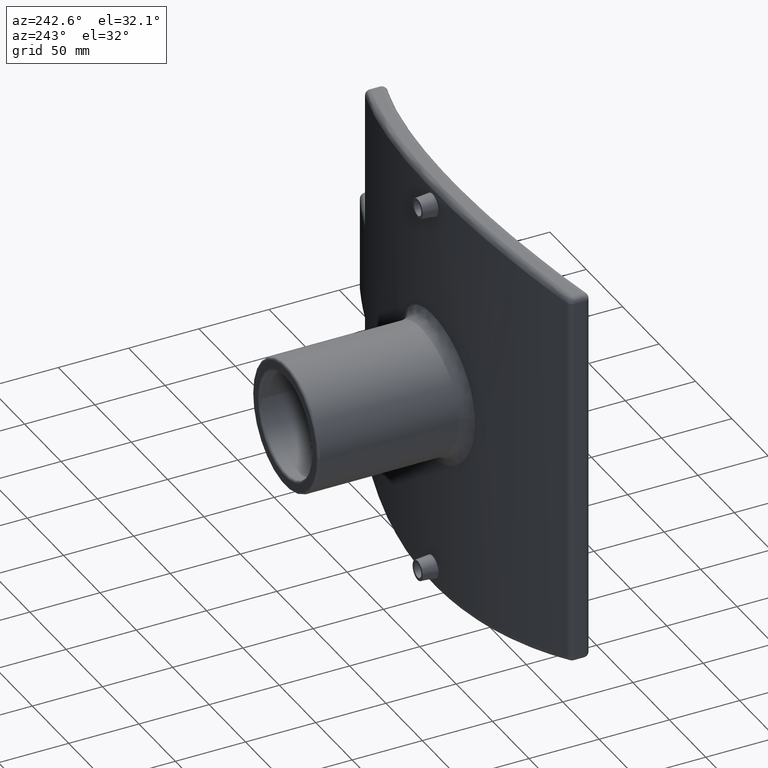
[diagram: clean part render]
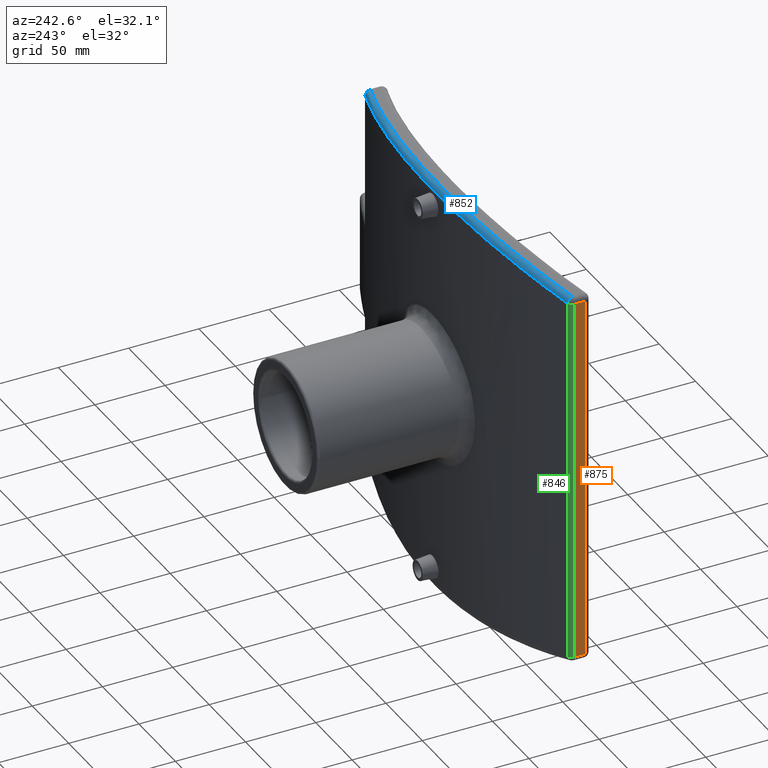
[diagram: same view with three faces highlighted in distinct colors, each labeled with its STEP entity id]
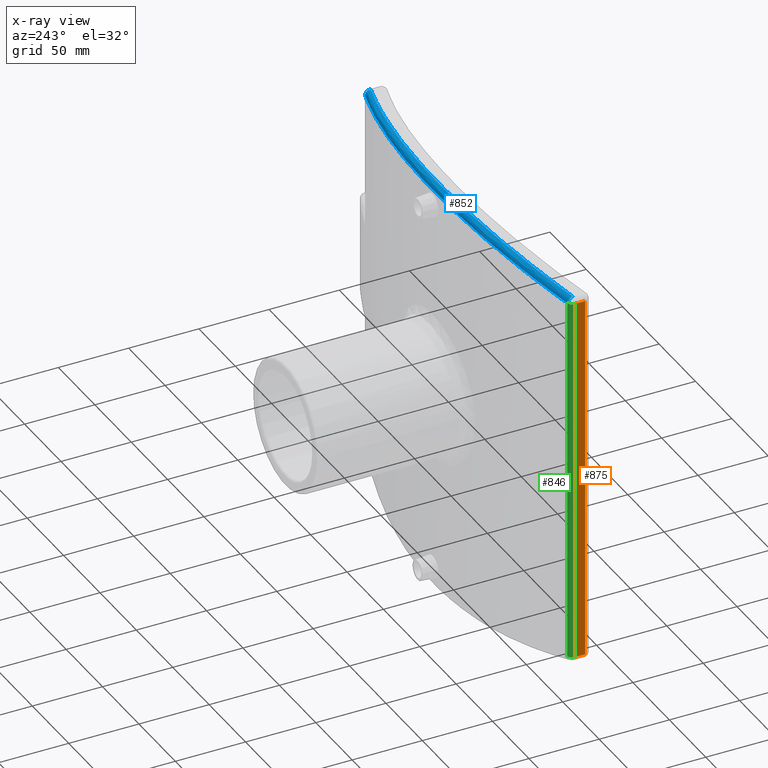
[diagram: x-ray of the same camera — body ghosted, the three highlighted faces saturated]
A machine part, auxiliary view with three faces highlighted in distinct colors.
The next image is the same camera in x-ray (body ghosted, the three faces saturated) — at least one of them is partly hidden behind the body in this view.
Their STEP definitions:

[orange] entity #875 — the highlighted planar face has unit normal (-1, 0, 0).
#34=LINE('',#1884,#64);
#45=LINE('',#2090,#75);
#47=LINE('',#2093,#77);
#51=LINE('',#2125,#81);
#64=VECTOR('',#1147,263.515226148028);
#75=VECTOR('',#1228,7.43788437451485);
#77=VECTOR('',#1232,263.515226148028);
#81=VECTOR('',#1250,7.43788437451485);
#152=PLANE('',#1001);
#238=FACE_OUTER_BOUND('',#325,.T.);
#325=EDGE_LOOP('',(#777,#778,#779,#780));
#434=VERTEX_POINT('',#1799);
#440=VERTEX_POINT('',#1874);
#442=VERTEX_POINT('',#1880);
#449=VERTEX_POINT('',#1902);
#521=EDGE_CURVE('',#434,#442,#34,.T.);
#558=EDGE_CURVE('',#442,#449,#45,.T.);
#560=EDGE_CURVE('',#449,#440,#47,.T.);
#569=EDGE_CURVE('',#440,#434,#51,.T.);
#777=ORIENTED_EDGE('',*,*,#521,.F.);
#778=ORIENTED_EDGE('',*,*,#569,.F.);
#779=ORIENTED_EDGE('',*,*,#560,.F.);
#780=ORIENTED_EDGE('',*,*,#558,.F.);
#875=ADVANCED_FACE('',(#238),#152,.T.);
#1001=AXIS2_PLACEMENT_3D('',#2205,#1274,#1275);
#1147=DIRECTION('',(0.,0.,1.));
#1228=DIRECTION('',(0.,-1.,0.));
#1232=DIRECTION('',(0.,0.,-1.));
#1250=DIRECTION('',(0.,1.,0.));
#1274=DIRECTION('center_axis',(-1.,0.,0.));
#1275=DIRECTION('ref_axis',(0.,-1.,0.));
#1799=CARTESIAN_POINT('',(-141.749999999997,387.22853394346,-131.757613074014));
#1874=CARTESIAN_POINT('',(-141.749999999997,379.790649568945,-131.757613074014));
#1880=CARTESIAN_POINT('',(-141.749999999997,387.22853394346,131.757613074014));
#1884=CARTESIAN_POINT('',(-141.749999999997,387.22853394346,0.));
#1902=CARTESIAN_POINT('',(-141.749999999997,379.790649568945,131.757613074014));
#2090=CARTESIAN_POINT('',(-141.749999999997,0.,131.757613074014));
#2093=CARTESIAN_POINT('',(-141.749999999997,379.790649568945,0.));
#2125=CARTESIAN_POINT('',(-141.749999999997,0.,-131.757613074014));
#2205=CARTESIAN_POINT('Origin',(-141.749999999997,390.040943363644,0.));

[blue] entity #852 — the highlighted face is a freeform B-spline surface patch.
#91=B_SPLINE_SURFACE_WITH_KNOTS('',3,3,((#1913,#1914,#1915,#1916,#1917,
#1918,#1919,#1920,#1921,#1922),(#1923,#1924,#1925,#1926,#1927,#1928,#1929,
#1930,#1931,#1932),(#1933,#1934,#1935,#1936,#1937,#1938,#1939,#1940,#1941,
#1942),(#1943,#1944,#1945,#1946,#1947,#1948,#1949,#1950,#1951,#1952),(#1953,
#1954,#1955,#1956,#1957,#1958,#1959,#1960,#1961,#1962)),.UNSPECIFIED.,.F.,
 .F.,.F.,(4,1,4),(4,1,1,1,1,1,1,4),(0.,0.571428571428571,1.),(1.40376582378853,
5.443916145348,9.48406646690747,13.524216788467,17.5643671100264,21.6045174315859,
25.6446677531454,29.6848180747049),.UNSPECIFIED.);
#98=B_SPLINE_CURVE_WITH_KNOTS('',3,(#1578,#1579,#1580,#1581,#1582,#1583,
#1584,#1585,#1586,#1587),.UNSPECIFIED.,.F.,.F.,(4,1,1,1,1,1,1,4),(-29.6848180747049,
-25.6446677531454,-21.6045174315859,-17.5643671100264,-13.524216788467,
-9.48406646690747,-5.443916145348,-1.40376582378853),.UNSPECIFIED.);
#105=B_SPLINE_CURVE_WITH_KNOTS('',3,(#1963,#1964,#1965,#1966,#1967,#1968,
#1969,#1970,#1971,#1972),.UNSPECIFIED.,.F.,.F.,(4,1,1,1,1,1,1,4),(1.40376582378853,
5.443916145348,9.48406646690747,13.524216788467,17.5643671100264,21.6045174315859,
25.6446677531454,29.6848180747049),.UNSPECIFIED.);
#215=FACE_OUTER_BOUND('',#302,.T.);
#302=EDGE_LOOP('',(#681,#682,#683,#684));
#368=CIRCLE('',#946,4.00000000000002);
#381=CIRCLE('',#965,4.00000000000003);
#409=VERTEX_POINT('',#1575);
#410=VERTEX_POINT('',#1577);
#441=VERTEX_POINT('',#1878);
#452=VERTEX_POINT('',#1910);
#481=EDGE_CURVE('',#410,#409,#98,.T.);
#518=EDGE_CURVE('',#409,#441,#368,.F.);
#533=EDGE_CURVE('',#452,#410,#381,.F.);
#535=EDGE_CURVE('',#441,#452,#105,.T.);
#681=ORIENTED_EDGE('',*,*,#533,.T.);
#682=ORIENTED_EDGE('',*,*,#481,.T.);
#683=ORIENTED_EDGE('',*,*,#518,.T.);
#684=ORIENTED_EDGE('',*,*,#535,.T.);
#852=ADVANCED_FACE('',(#215),#91,.F.);
#946=AXIS2_PLACEMENT_3D('',#1879,#1139,#1140);
#965=AXIS2_PLACEMENT_3D('',#1911,#1179,#1180);
#1139=DIRECTION('center_axis',(-0.924407265742549,-0.328842246100135,-0.193220040943486));
#1140=DIRECTION('ref_axis',(-0.335158150851565,0.942161883074113,0.));
#1179=DIRECTION('center_axis',(0.924407265742537,-0.328842246100144,-0.193220040943531));
#1180=DIRECTION('ref_axis',(0.204598832189958,0.,0.978845911196704));
#1575=CARTESIAN_POINT('',(-139.090632603403,390.997181475756,131.757613074014));
#1577=CARTESIAN_POINT('',(139.09063260341,390.997181475753,131.757613074014));
#1578=CARTESIAN_POINT('Ctrl Pts',(139.09063260341,390.997181475753,131.757613074014));
#1579=CARTESIAN_POINT('Ctrl Pts',(126.519619840078,395.469106595822,134.359885811923));
#1580=CARTESIAN_POINT('Ctrl Pts',(100.833542230235,403.239687862746,138.939302310598));
#1581=CARTESIAN_POINT('Ctrl Pts',(61.0289804996453,411.160089339478,143.680141816067));
#1582=CARTESIAN_POINT('Ctrl Pts',(20.4299098443042,415.167026397045,146.100938434617));
#1583=CARTESIAN_POINT('Ctrl Pts',(-20.4298369698659,415.166726763724,146.100589001554));
#1584=CARTESIAN_POINT('Ctrl Pts',(-61.0304030310194,411.160253956872,143.680393743337));
#1585=CARTESIAN_POINT('Ctrl Pts',(-100.834195039831,403.239244715472,138.938929959963));
#1586=CARTESIAN_POINT('Ctrl Pts',(-126.519711970523,395.469073821974,134.359866740384));
#1587=CARTESIAN_POINT('Ctrl Pts',(-139.090632603403,390.997181475756,131.757613074014));
#1878=CARTESIAN_POINT('',(-138.568395328756,387.22853394346,135.672996718801));
#1879=CARTESIAN_POINT('Origin',(-137.749999999996,387.22853394346,131.757613074014));
#1910=CARTESIAN_POINT('',(138.568395328763,387.228533943457,135.672996718801));
#1911=CARTESIAN_POINT('Origin',(137.750000000004,387.228533943457,131.757613074014));
#1913=CARTESIAN_POINT('Ctrl Pts',(-138.568395328756,387.228533943459,135.672996718801));
#1914=CARTESIAN_POINT('Ctrl Pts',(-126.044674160055,391.657323712847,138.290710800741));
#1915=CARTESIAN_POINT('Ctrl Pts',(-100.455597472021,399.352601392913,142.896978985467));
#1916=CARTESIAN_POINT('Ctrl Pts',(-60.8012549514332,407.197263557287,147.666612582357));
#1917=CARTESIAN_POINT('Ctrl Pts',(-20.3531299898133,411.165119758772,150.1011866173));
#1918=CARTESIAN_POINT('Ctrl Pts',(20.3532025906333,411.165416504061,150.101538126402));
#1919=CARTESIAN_POINT('Ctrl Pts',(60.7998377611729,407.197100526566,147.666359158345));
#1920=CARTESIAN_POINT('Ctrl Pts',(100.4549471135,399.353040268889,142.897353548298));
#1921=CARTESIAN_POINT('Ctrl Pts',(126.044582375528,391.657356170802,138.290729985588));
#1922=CARTESIAN_POINT('Ctrl Pts',(138.568395328763,387.228533943457,135.672996718801));
#1923=CARTESIAN_POINT('Ctrl Pts',(-138.936796978407,388.309391961421,135.595993232927));
#1924=CARTESIAN_POINT('Ctrl Pts',(-126.385251652634,392.75874879433,138.22713303341));
#1925=CARTESIAN_POINT('Ctrl Pts',(-100.735610300533,400.490401480759,142.856819067967));
#1926=CARTESIAN_POINT('Ctrl Pts',(-60.9756414166283,408.374540282723,147.6533616287));
#1927=CARTESIAN_POINT('Ctrl Pts',(-20.4124107713335,412.362742627799,150.101721234607));
#1928=CARTESIAN_POINT('Ctrl Pts',(20.4125342374707,412.36313409812,150.102252448013));
#1929=CARTESIAN_POINT('Ctrl Pts',(60.9741029717174,408.374308499327,147.652975795759));
#1930=CARTESIAN_POINT('Ctrl Pts',(100.735137128866,400.490850466149,142.857210705906));
#1931=CARTESIAN_POINT('Ctrl Pts',(126.385159664189,392.758781403017,138.227152316651));
#1932=CARTESIAN_POINT('Ctrl Pts',(138.936796978414,388.309391961419,135.595993232927));
#1933=CARTESIAN_POINT('Ctrl Pts',(-139.388592970548,390.183696492851,134.567595695837));
#1934=CARTESIAN_POINT('Ctrl Pts',(-126.802731841336,394.667599845869,137.201802933369));
#1935=CARTESIAN_POINT('Ctrl Pts',(-101.077398147305,402.462094982776,141.839121172993));
#1936=CARTESIAN_POINT('Ctrl Pts',(-61.1882195676508,410.412728205255,146.643678168482));
#1937=CARTESIAN_POINT('Ctrl Pts',(-20.4845299526663,414.435853947221,149.09708649421));
#1938=CARTESIAN_POINT('Ctrl Pts',(20.4845993421297,414.436149555662,149.097429380408));
#1939=CARTESIAN_POINT('Ctrl Pts',(61.1868009245948,410.412566155938,146.64343106239));
#1940=CARTESIAN_POINT('Ctrl Pts',(101.076727004386,402.462543670323,141.839499688933));
#1941=CARTESIAN_POINT('Ctrl Pts',(126.802639601395,394.667632707743,137.201822239091));
#1942=CARTESIAN_POINT('Ctrl Pts',(139.388592970555,390.183696492849,134.567595695836));
#1943=CARTESIAN_POINT('Ctrl Pts',(-139.246896479438,390.941593245455,132.599819814549));
#1944=CARTESIAN_POINT('Ctrl Pts',(-126.666568586152,395.422582615039,135.211549953449));
#1945=CARTESIAN_POINT('Ctrl Pts',(-100.958228517898,403.209654149806,139.808174562169));
#1946=CARTESIAN_POINT('Ctrl Pts',(-61.1096225821967,411.150225794714,144.56842044522));
#1947=CARTESIAN_POINT('Ctrl Pts',(-20.457089416485,415.167148720794,146.998609428413));
#1948=CARTESIAN_POINT('Ctrl Pts',(20.4571673391366,415.167497668691,146.998918939567));
#1949=CARTESIAN_POINT('Ctrl Pts',(61.1081867189751,411.15002453714,144.56819800229));
#1950=CARTESIAN_POINT('Ctrl Pts',(100.957592032215,403.210104162502,139.808545734061));
#1951=CARTESIAN_POINT('Ctrl Pts',(126.666476386763,395.422615455557,135.211569094439));
#1952=CARTESIAN_POINT('Ctrl Pts',(139.246896479445,390.941593245453,132.599819814549));
#1953=CARTESIAN_POINT('Ctrl Pts',(-139.090632603403,390.997181475756,131.757613074014));
#1954=CARTESIAN_POINT('Ctrl Pts',(-126.519711970523,395.469073821974,134.359866740384));
#1955=CARTESIAN_POINT('Ctrl Pts',(-100.834195039831,403.239244715472,138.938929959963));
#1956=CARTESIAN_POINT('Ctrl Pts',(-61.0304030310194,411.160253956872,143.680393743337));
#1957=CARTESIAN_POINT('Ctrl Pts',(-20.4298369698659,415.166726763724,146.100589001554));
#1958=CARTESIAN_POINT('Ctrl Pts',(20.4299098443042,415.167026397045,146.100938434617));
#1959=CARTESIAN_POINT('Ctrl Pts',(61.0289804996453,411.160089339478,143.680141816067));
#1960=CARTESIAN_POINT('Ctrl Pts',(100.833542230235,403.239687862746,138.939302310598));
#1961=CARTESIAN_POINT('Ctrl Pts',(126.519619840078,395.469106595822,134.359885811923));
#1962=CARTESIAN_POINT('Ctrl Pts',(139.09063260341,390.997181475753,131.757613074014));
#1963=CARTESIAN_POINT('Ctrl Pts',(-138.568395328756,387.228533943459,135.672996718801));
#1964=CARTESIAN_POINT('Ctrl Pts',(-126.044674160055,391.657323712847,138.290710800741));
#1965=CARTESIAN_POINT('Ctrl Pts',(-100.455597472021,399.352601392913,142.896978985467));
#1966=CARTESIAN_POINT('Ctrl Pts',(-60.8012549514332,407.197263557287,147.666612582357));
#1967=CARTESIAN_POINT('Ctrl Pts',(-20.3531299898133,411.165119758772,150.1011866173));
#1968=CARTESIAN_POINT('Ctrl Pts',(20.3532025906333,411.165416504061,150.101538126402));
#1969=CARTESIAN_POINT('Ctrl Pts',(60.7998377611729,407.197100526566,147.666359158345));
#1970=CARTESIAN_POINT('Ctrl Pts',(100.4549471135,399.353040268889,142.897353548298));
#1971=CARTESIAN_POINT('Ctrl Pts',(126.044582375528,391.657356170802,138.290729985588));
#1972=CARTESIAN_POINT('Ctrl Pts',(138.568395328763,387.228533943457,135.672996718801));

[green] entity #846 — the highlighted cylindrical surface (edge-blend (fillet) strip) has radius 4 mm, axis along (0, 0, -1).
#31=LINE('',#1576,#61);
#34=LINE('',#1884,#64);
#61=VECTOR('',#1036,263.515226148029);
#64=VECTOR('',#1147,263.515226148028);
#125=CYLINDRICAL_SURFACE('',#949,4.);
#209=FACE_OUTER_BOUND('',#296,.T.);
#296=EDGE_LOOP('',(#661,#662,#663,#664));
#359=CIRCLE('',#934,4.00000000000002);
#369=CIRCLE('',#947,4.00000000000002);
#408=VERTEX_POINT('',#1564);
#409=VERTEX_POINT('',#1575);
#434=VERTEX_POINT('',#1799);
#442=VERTEX_POINT('',#1880);
#480=EDGE_CURVE('',#409,#408,#31,.T.);
#508=EDGE_CURVE('',#408,#434,#359,.F.);
#519=EDGE_CURVE('',#442,#409,#369,.F.);
#521=EDGE_CURVE('',#434,#442,#34,.T.);
#661=ORIENTED_EDGE('',*,*,#508,.T.);
#662=ORIENTED_EDGE('',*,*,#521,.T.);
#663=ORIENTED_EDGE('',*,*,#519,.T.);
#664=ORIENTED_EDGE('',*,*,#480,.T.);
#846=ADVANCED_FACE('',(#209),#125,.T.);
#934=AXIS2_PLACEMENT_3D('',#1800,#1115,#1116);
#947=AXIS2_PLACEMENT_3D('',#1881,#1141,#1142);
#949=AXIS2_PLACEMENT_3D('',#1883,#1145,#1146);
#1036=DIRECTION('',(0.,0.,-1.));
#1115=DIRECTION('center_axis',(-3.55271367880048E-14,-1.26381778809256E-14,
-1.));
#1116=DIRECTION('ref_axis',(-0.335158150851569,0.942161883074112,0.));
#1141=DIRECTION('center_axis',(0.,-4.24216152282627E-14,1.));
#1142=DIRECTION('ref_axis',(-1.,0.,0.));
#1145=DIRECTION('center_axis',(0.,0.,-1.));
#1146=DIRECTION('ref_axis',(-0.817055123859947,0.576559558566335,0.));
#1147=DIRECTION('',(0.,0.,1.));
#1564=CARTESIAN_POINT('',(-139.090632603403,390.997181475756,-131.757613074014));
#1575=CARTESIAN_POINT('',(-139.090632603403,390.997181475756,131.757613074014));
#1576=CARTESIAN_POINT('',(-139.090632603403,390.997181475756,0.));
#1799=CARTESIAN_POINT('',(-141.749999999997,387.22853394346,-131.757613074014));
#1800=CARTESIAN_POINT('Origin',(-137.749999999996,387.22853394346,-131.757613074014));
#1880=CARTESIAN_POINT('',(-141.749999999997,387.22853394346,131.757613074014));
#1881=CARTESIAN_POINT('Origin',(-137.749999999996,387.22853394346,131.757613074014));
#1883=CARTESIAN_POINT('Origin',(-137.749999999996,387.22853394346,0.));
#1884=CARTESIAN_POINT('',(-141.749999999997,387.22853394346,0.));